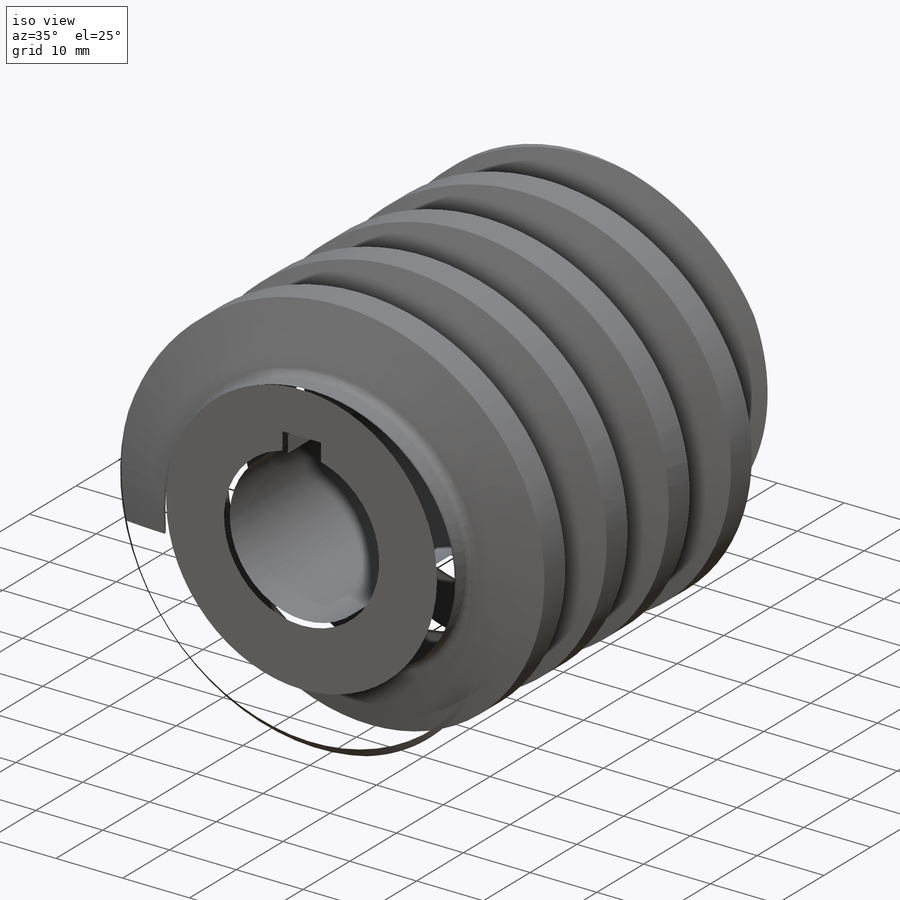
[diagram: iso view]
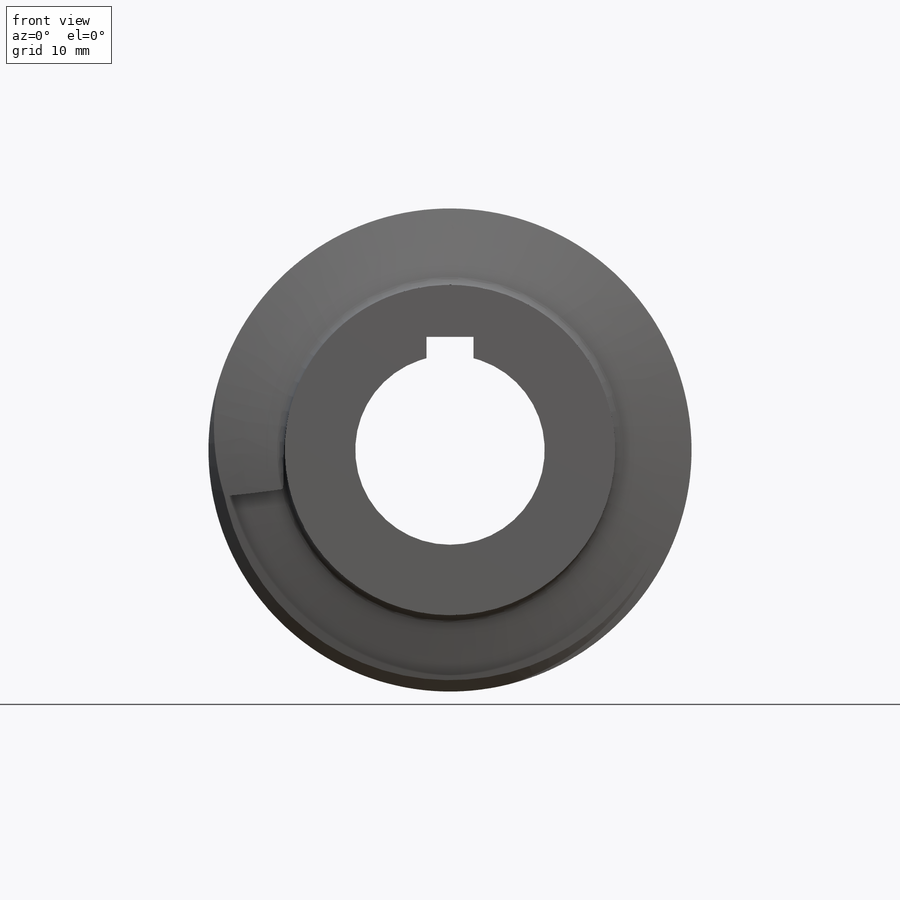
[diagram: front view]
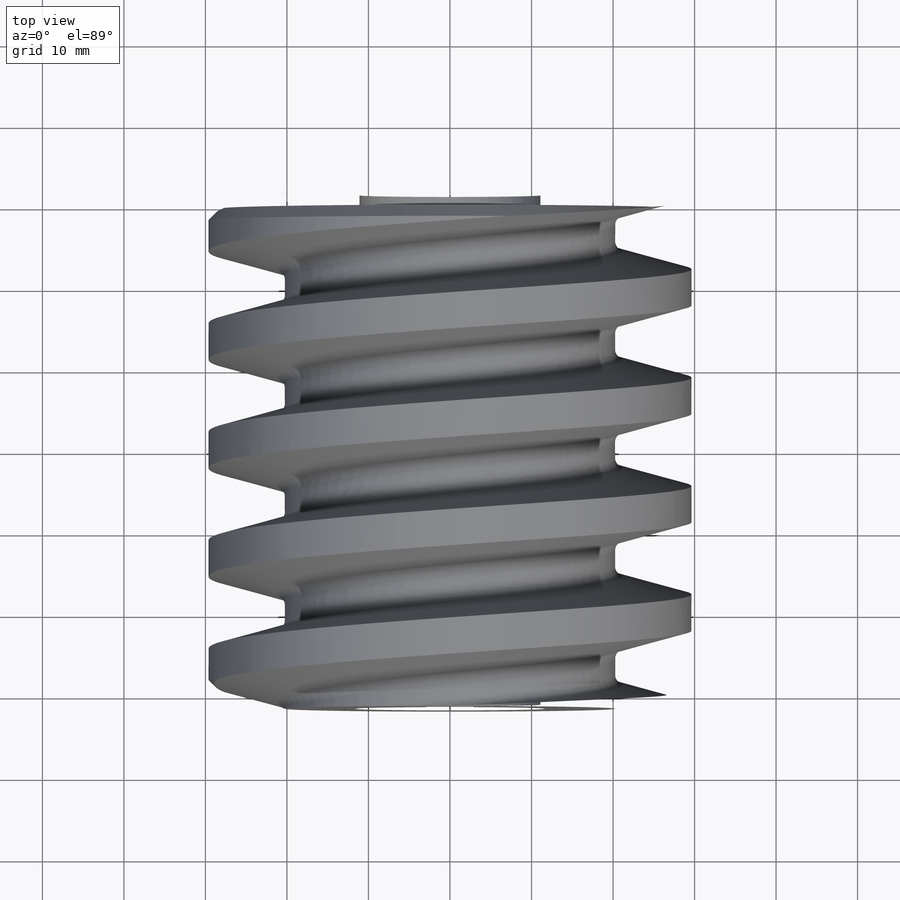
[diagram: top view]
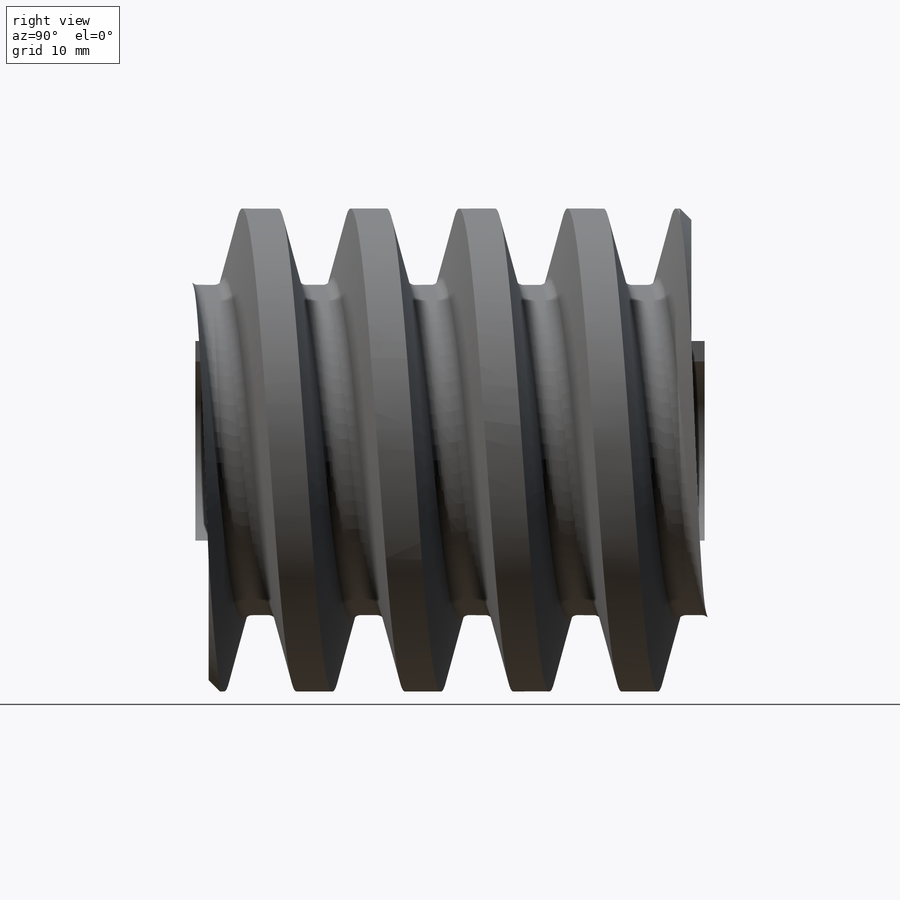
[diagram: right view]
SOLIDWORKS PART (.sldprt)
format: sldprt  version: not decoded by parser v0  size: 897,536 bytes
history: native  units: mm
features: sketch x7, helix x2, cut_extrude x2, material x1, revolve x1, sweep x1, cut_revolve x1, mirror x1, chamfer x1 + 1 further entry (+12 scaffold rows collapsed)
feature tree (30):
  scaffold x12  (default folders/planes/origin — collapsed)
  material  "Plain Carbon Steel"
  "Design Table"
  sketch  "SketchRevolveWorm01"  dims[Side1=31.75mm ChamferX=3.5306mm ChamferY=3.5306mm OutsideDiameter=~29.633333mm WormLength=63.5mm]
  revolve  "Worm01"  Angle=360deg
  helix  "HelixPlaneWorm01"  Pitch=39.898227mm
  sketch  "SketchHelixWorm01"  dims[PitchDiameter=50.8mm]
  helix  "GearHelixWorm01"  Pitch=79.796453mm
  sketch  "SketchToothWorm01"
  sweep  "ToothCutWorm01"
  sketch  "BoreRevolveSketch"  dims[BoreSide1=31.75mm TaperSide1=11.1125mm BoreSide2=31.75mm TaperSide2=11.1125mm]
  cut_revolve  "BoreRevolveCut"  Angle=360deg
  sketch  "KeywaySketch"  dims[KeyWidth1=~2.38125mm KeyAngle=~2.38125mm KeyInside=~9.266868mm KeyWidth2=~2.38125mm KeyOutside=~12.441868mm D1=3.175mm D2=4.7625mm D3=24.4856mm]
  cut_extrude  "Keyway"  [1 undecoded]
  sketch  "AuxiliarySketchWorm01"  dims[PitchDiameter=50.8mm]
  sketch  "Sketch7"
  cut_extrude  "Cut-Extrude2"  Depth=2.54mm
  mirror  "Mirror1"
  chamfer  "Chamfer1"  Distance=0.508mm Angle=45deg
decode coverage: 11 of 16 modeling features carry decoded parameters; 1 rows unclassified (native names shown)
note: ~ marks probable driven/reference dimensions
note: 1 parameter value undecoded
note: suppression state not decoded; provenance and decode notes live in map.json
